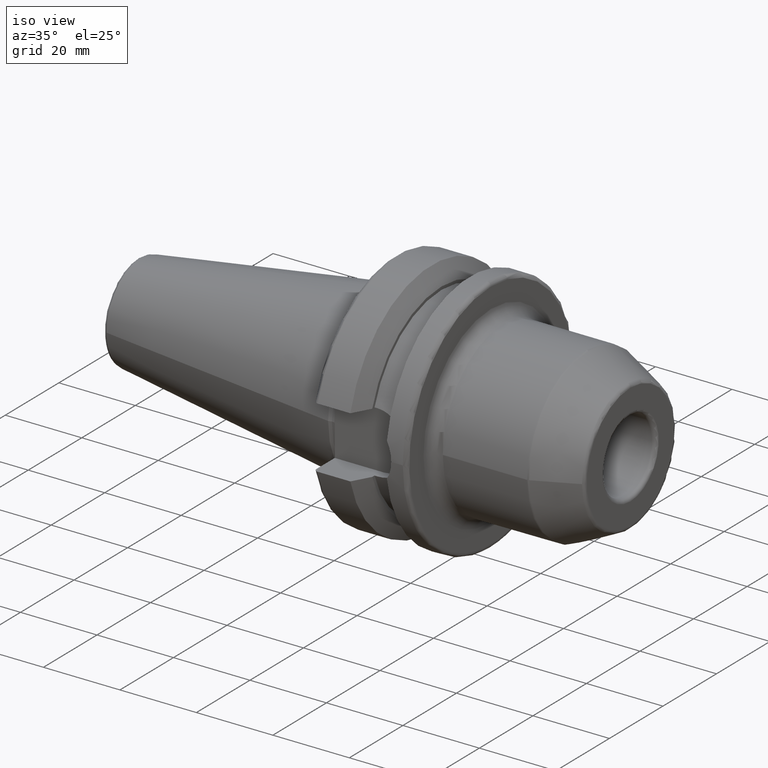
[diagram: clean part render]
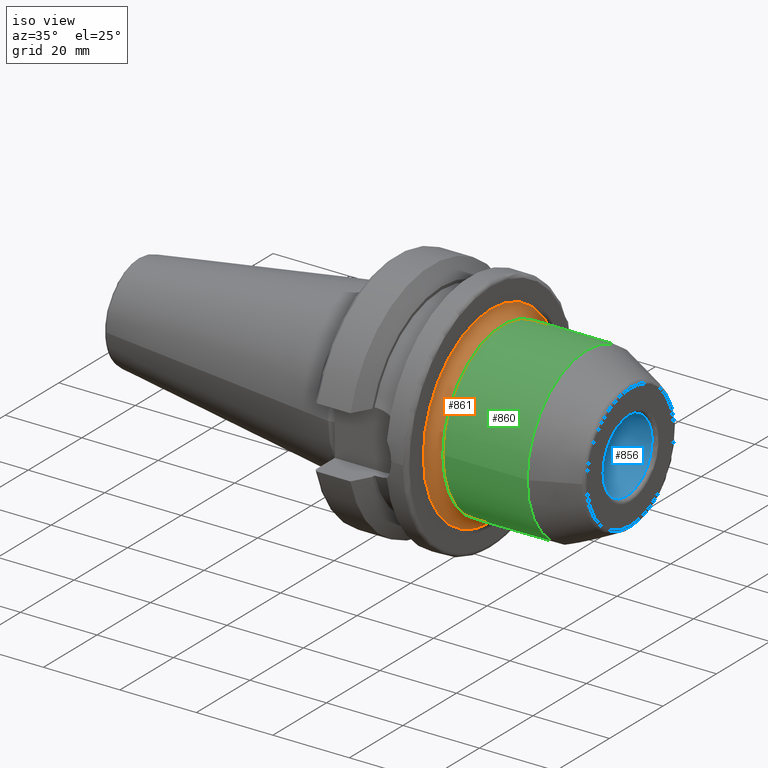
[diagram: same view with three faces highlighted in distinct colors, each labeled with its STEP entity id]
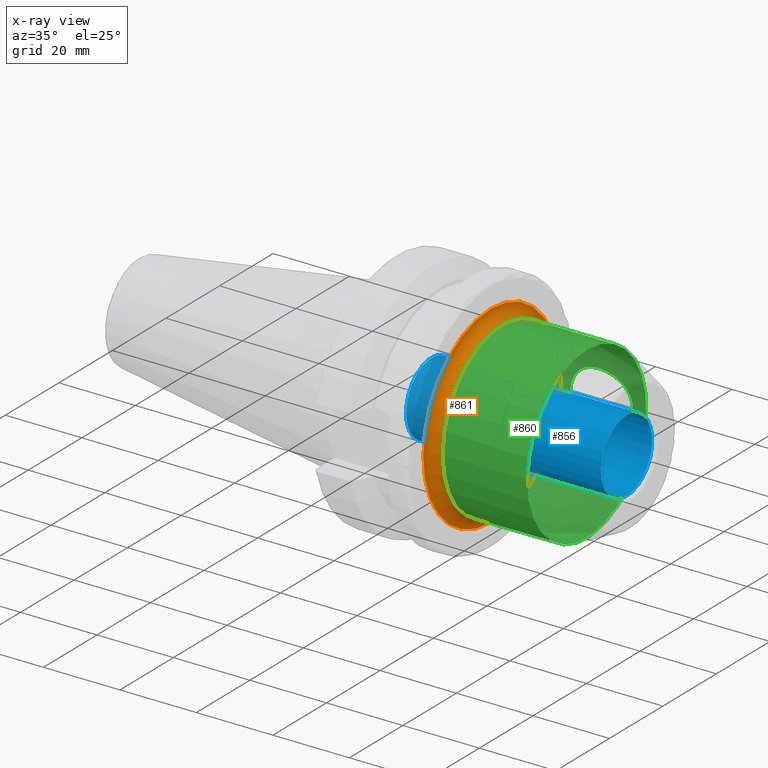
[diagram: x-ray of the same camera — body ghosted, the three highlighted faces saturated]
A machine part, iso view with three faces highlighted in distinct colors.
The next image is the same camera in x-ray (body ghosted, the three faces saturated) — at least one of them is partly hidden behind the body in this view.
Their STEP definitions:

[orange] entity #861 — the highlighted toroidal blend (fillet) surface has major radius 25.225 mm and minor (blend) radius 3 mm.
#189=FACE_OUTER_BOUND('',#245,.T.);
#245=EDGE_LOOP('',(#618,#619,#620,#621,#622));
#312=CIRCLE('',#951,22.225);
#313=CIRCLE('',#952,22.225);
#314=CIRCLE('',#954,3.);
#315=CIRCLE('',#955,25.225);
#374=VERTEX_POINT('',#1409);
#375=VERTEX_POINT('',#1411);
#377=VERTEX_POINT('',#1442);
#467=EDGE_CURVE('',#375,#374,#312,.T.);
#468=EDGE_CURVE('',#374,#375,#313,.T.);
#470=EDGE_CURVE('',#375,#377,#314,.T.);
#471=EDGE_CURVE('',#377,#377,#315,.T.);
#618=ORIENTED_EDGE('',*,*,#468,.T.);
#619=ORIENTED_EDGE('',*,*,#470,.T.);
#620=ORIENTED_EDGE('',*,*,#471,.T.);
#621=ORIENTED_EDGE('',*,*,#470,.F.);
#622=ORIENTED_EDGE('',*,*,#467,.T.);
#847=TOROIDAL_SURFACE('',#953,25.225,3.);
#861=ADVANCED_FACE('',(#189),#847,.F.);
#951=AXIS2_PLACEMENT_3D('',#1412,#1092,#1093);
#952=AXIS2_PLACEMENT_3D('',#1413,#1094,#1095);
#953=AXIS2_PLACEMENT_3D('',#1441,#1096,#1097);
#954=AXIS2_PLACEMENT_3D('',#1443,#1098,#1099);
#955=AXIS2_PLACEMENT_3D('',#1444,#1100,#1101);
#1092=DIRECTION('center_axis',(-1.,0.,0.));
#1093=DIRECTION('ref_axis',(0.,-1.,-1.22464679914735E-16));
#1094=DIRECTION('center_axis',(-1.,0.,0.));
#1095=DIRECTION('ref_axis',(0.,-1.,-1.22464679914735E-16));
#1096=DIRECTION('center_axis',(-1.,0.,0.));
#1097=DIRECTION('ref_axis',(0.,0.,1.));
#1098=DIRECTION('center_axis',(0.,-1.,1.22464679914735E-16));
#1099=DIRECTION('ref_axis',(0.,-1.22464679914735E-16,-1.));
#1100=DIRECTION('center_axis',(1.,0.,0.));
#1101=DIRECTION('ref_axis',(0.,-1.,-1.22464679914735E-16));
#1409=CARTESIAN_POINT('',(30.,-22.225,-2.72177751110499E-15));
#1411=CARTESIAN_POINT('',(30.,-2.72177751110499E-15,-22.225));
#1412=CARTESIAN_POINT('Origin',(30.,0.,0.));
#1413=CARTESIAN_POINT('Origin',(30.,0.,0.));
#1441=CARTESIAN_POINT('Origin',(30.,0.,0.));
#1442=CARTESIAN_POINT('',(27.,-3.0891715508492E-15,-25.225));
#1443=CARTESIAN_POINT('Origin',(30.,-3.0891715508492E-15,-25.225));
#1444=CARTESIAN_POINT('Origin',(27.,0.,0.));

[blue] entity #856 — the highlighted cylindrical surface (bore or boss wall) has radius 9.525 mm, axis along (1, 0, 0).
#29=B_SPLINE_CURVE_WITH_KNOTS('',3,(#1340,#1341,#1342,#1343,#1344,#1345,
#1346,#1347,#1348,#1349,#1350,#1351),.UNSPECIFIED.,.F.,.F.,(4,2,2,2,2,4),
(0.,0.230466512573232,0.460933025146465,0.692919319972664,0.924905614798864,
1.10003919702619),.UNSPECIFIED.);
#30=B_SPLINE_CURVE_WITH_KNOTS('',3,(#1352,#1353,#1354,#1355,#1356,#1357,
#1358,#1359,#1360,#1361,#1362,#1363,#1364,#1365,#1366,#1367,#1368,#1369,
#1370,#1371,#1372,#1373,#1374,#1375,#1376,#1377,#1378,#1379,#1380,#1381,
#1382,#1383,#1384,#1385,#1386,#1387,#1388,#1389),.UNSPECIFIED.,.F.,.F.,
(4,2,2,2,2,2,2,2,2,2,2,2,2,2,2,2,2,2,4),(1.10003919702619,1.14431938933897,
1.36373316387908,1.64491659882425,1.92610003376942,2.11976279155213,2.21659417044348,
2.31342554933483,2.41025692822619,2.50708830711754,2.70075106490025,2.98193449984542,
3.26311793479059,3.4825317093307,3.7019454838708,3.933931778697,4.1659180735232,
4.39638458609644,4.62685109866967),.UNSPECIFIED.);
#49=LINE('',#1336,#94);
#94=VECTOR('',#1063,9.525);
#139=CYLINDRICAL_SURFACE('',#937,9.525);
#155=FACE_BOUND('',#239,.T.);
#184=FACE_OUTER_BOUND('',#238,.T.);
#238=EDGE_LOOP('',(#587,#588,#589,#590,#591));
#239=EDGE_LOOP('',(#592,#593));
#298=CIRCLE('',#931,9.525);
#299=CIRCLE('',#932,9.525);
#303=CIRCLE('',#938,9.525);
#361=VERTEX_POINT('',#1324);
#362=VERTEX_POINT('',#1325);
#365=VERTEX_POINT('',#1335);
#366=VERTEX_POINT('',#1338);
#367=VERTEX_POINT('',#1339);
#448=EDGE_CURVE('',#361,#362,#298,.T.);
#449=EDGE_CURVE('',#362,#361,#299,.T.);
#453=EDGE_CURVE('',#362,#365,#49,.T.);
#454=EDGE_CURVE('',#365,#365,#303,.T.);
#455=EDGE_CURVE('',#366,#367,#29,.T.);
#456=EDGE_CURVE('',#367,#366,#30,.T.);
#587=ORIENTED_EDGE('',*,*,#448,.F.);
#588=ORIENTED_EDGE('',*,*,#449,.F.);
#589=ORIENTED_EDGE('',*,*,#453,.T.);
#590=ORIENTED_EDGE('',*,*,#454,.T.);
#591=ORIENTED_EDGE('',*,*,#453,.F.);
#592=ORIENTED_EDGE('',*,*,#455,.T.);
#593=ORIENTED_EDGE('',*,*,#456,.T.);
#856=ADVANCED_FACE('',(#184,#155),#139,.F.);
#931=AXIS2_PLACEMENT_3D('',#1326,#1049,#1050);
#932=AXIS2_PLACEMENT_3D('',#1327,#1051,#1052);
#937=AXIS2_PLACEMENT_3D('',#1334,#1061,#1062);
#938=AXIS2_PLACEMENT_3D('',#1337,#1064,#1065);
#1049=DIRECTION('center_axis',(-1.,0.,0.));
#1050=DIRECTION('ref_axis',(0.,-1.,1.83697019872103E-16));
#1051=DIRECTION('center_axis',(-1.,0.,0.));
#1052=DIRECTION('ref_axis',(0.,-1.,1.83697019872103E-16));
#1061=DIRECTION('center_axis',(1.,0.,0.));
#1062=DIRECTION('ref_axis',(0.,1.,0.));
#1063=DIRECTION('',(-1.,0.,0.));
#1064=DIRECTION('center_axis',(-1.,0.,0.));
#1065=DIRECTION('ref_axis',(0.,0.,1.));
#1324=CARTESIAN_POINT('',(62.5,-1.16647607618785E-15,9.525));
#1325=CARTESIAN_POINT('',(62.5,-9.525,-1.16647607618785E-15));
#1326=CARTESIAN_POINT('Origin',(62.5,0.,0.));
#1327=CARTESIAN_POINT('Origin',(62.5,0.,0.));
#1334=CARTESIAN_POINT('Origin',(45.25,0.,0.));
#1335=CARTESIAN_POINT('',(11.5,-9.525,-1.16647607618785E-15));
#1336=CARTESIAN_POINT('',(45.25,-9.525,-1.16647607618785E-15));
#1337=CARTESIAN_POINT('Origin',(11.5,0.,0.));
#1338=CARTESIAN_POINT('',(40.4,7.64946565127264,5.6755));
#1339=CARTESIAN_POINT('',(47.5755,9.40614825526744,-1.4999999999882));
#1340=CARTESIAN_POINT('Ctrl Pts',(40.4,7.64946565127264,5.6755));
#1341=CARTESIAN_POINT('Ctrl Pts',(41.1682217085774,7.64946565127264,5.6755));
#1342=CARTESIAN_POINT('Ctrl Pts',(41.9822344644768,7.75123567275378,5.54459917063008));
#1343=CARTESIAN_POINT('Ctrl Pts',(43.4972118466025,8.09958180738268,5.02205049765173));
#1344=CARTESIAN_POINT('Ctrl Pts',(44.2001260371873,8.33847887931042,4.63096595664662));
#1345=CARTESIAN_POINT('Ctrl Pts',(45.3696691523972,8.77930616942869,3.72869587360727));
#1346=CARTESIAN_POINT('Ctrl Pts',(45.9295268261851,9.01817091888702,3.14352487735058));
#1347=CARTESIAN_POINT('Ctrl Pts',(46.82222884407,9.37910094603838,1.80045003440052));
#1348=CARTESIAN_POINT('Ctrl Pts',(47.1547609974679,9.49746773900189,1.04134760651329));
#1349=CARTESIAN_POINT('Ctrl Pts',(47.493696679119,9.53787875645908,-0.272090012423892));
#1350=CARTESIAN_POINT('Ctrl Pts',(47.5755,9.50376352485347,-0.887877534830747));
#1351=CARTESIAN_POINT('Ctrl Pts',(47.5755,9.40614825526744,-1.4999999999764));
#1352=CARTESIAN_POINT('Ctrl Pts',(47.5755,9.40614825526744,-1.4999999999764));
#1353=CARTESIAN_POINT('Ctrl Pts',(47.5755,9.38146753524242,-1.6547670077136));
#1354=CARTESIAN_POINT('Ctrl Pts',(47.5704801072128,9.35289136351269,-1.80932656140089));
#1355=CARTESIAN_POINT('Ctrl Pts',(47.5113844786342,9.1603572791699,-2.72357185668363));
#1356=CARTESIAN_POINT('Ctrl Pts',(47.3355012605568,8.9019414577022,-3.45804256371677));
#1357=CARTESIAN_POINT('Ctrl Pts',(46.7864147837142,8.22664413613363,-4.88173317969903));
#1358=CARTESIAN_POINT('Ctrl Pts',(46.325073443709,7.72535396687226,-5.63426078677205));
#1359=CARTESIAN_POINT('Ctrl Pts',(45.2054147361714,6.62451682900913,-6.89505316657466));
#1360=CARTESIAN_POINT('Ctrl Pts',(44.5488200056318,6.02553641425123,-7.40534095577965));
#1361=CARTESIAN_POINT('Ctrl Pts',(43.4060127760069,5.13109094064076,-8.03722711383778));
#1362=CARTESIAN_POINT('Ctrl Pts',(42.8614688810049,4.74216167770653,-8.26765917100101));
#1363=CARTESIAN_POINT('Ctrl Pts',(41.9780083182892,4.28889307000784,-8.5064791046894));
#1364=CARTESIAN_POINT('Ctrl Pts',(41.6717866371285,4.16027172347988,-8.56898741498497));
#1365=CARTESIAN_POINT('Ctrl Pts',(41.0442919865103,3.98144708220432,-8.65352444853739));
#1366=CARTESIAN_POINT('Ctrl Pts',(40.7227712629712,3.93208910758645,-8.6755));
#1367=CARTESIAN_POINT('Ctrl Pts',(40.0772287370288,3.93208910758645,-8.6755));
#1368=CARTESIAN_POINT('Ctrl Pts',(39.7557080134897,3.98144708220433,-8.65352444853739));
#1369=CARTESIAN_POINT('Ctrl Pts',(39.1282133628715,4.16027172347989,-8.56898741498497));
#1370=CARTESIAN_POINT('Ctrl Pts',(38.8219916817108,4.28889307000784,-8.5064791046894));
#1371=CARTESIAN_POINT('Ctrl Pts',(37.9385311189952,4.74216167770653,-8.26765917100101));
#1372=CARTESIAN_POINT('Ctrl Pts',(37.3939872239931,5.13109094064076,-8.03722711383778));
#1373=CARTESIAN_POINT('Ctrl Pts',(36.2511799943682,6.02553641425123,-7.40534095577966));
#1374=CARTESIAN_POINT('Ctrl Pts',(35.5945852638286,6.62451682900912,-6.89505316657467));
#1375=CARTESIAN_POINT('Ctrl Pts',(34.4749265562911,7.72535396687226,-5.63426078677206));
#1376=CARTESIAN_POINT('Ctrl Pts',(34.0135852162858,8.22664413613363,-4.88173317969903));
#1377=CARTESIAN_POINT('Ctrl Pts',(33.4644987394432,8.9019414577022,-3.45804256371677));
#1378=CARTESIAN_POINT('Ctrl Pts',(33.2886155213658,9.1603572791699,-2.72357185668363));
#1379=CARTESIAN_POINT('Ctrl Pts',(33.1902712544871,9.48076377672806,-1.20212626968288));
#1380=CARTESIAN_POINT('Ctrl Pts',(33.2694391488986,9.54227404080999,-0.414945406216732));
#1381=CARTESIAN_POINT('Ctrl Pts',(33.6452390025321,9.49746773900189,1.04134760651329));
#1382=CARTESIAN_POINT('Ctrl Pts',(33.97777115593,9.37910094603838,1.80045003440052));
#1383=CARTESIAN_POINT('Ctrl Pts',(34.870473173815,9.01817091888702,3.14352487735057));
#1384=CARTESIAN_POINT('Ctrl Pts',(35.4303308476028,8.77930616942869,3.72869587360726));
#1385=CARTESIAN_POINT('Ctrl Pts',(36.5998739628127,8.33847887931042,4.63096595664662));
#1386=CARTESIAN_POINT('Ctrl Pts',(37.3027881533976,8.09958180738268,5.02205049765173));
#1387=CARTESIAN_POINT('Ctrl Pts',(38.8177655355232,7.75123567275378,5.54459917063008));
#1388=CARTESIAN_POINT('Ctrl Pts',(39.6317782914226,7.64946565127264,5.6755));
#1389=CARTESIAN_POINT('Ctrl Pts',(40.4,7.64946565127264,5.6755));

[green] entity #860 — the highlighted cylindrical surface (bore or boss wall) has radius 22.225 mm, axis along (1, 0, 0).
#31=B_SPLINE_CURVE_WITH_KNOTS('',3,(#1415,#1416,#1417,#1418,#1419,#1420,
#1421,#1422,#1423,#1424,#1425,#1426,#1427,#1428,#1429,#1430,#1431,#1432,
#1433,#1434,#1435,#1436,#1437,#1438,#1439,#1440),.UNSPECIFIED.,.T.,.F.,
(4,1,1,1,1,1,1,1,1,1,1,1,1,1,1,1,1,1,1,1,1,1,1,4),(-7.79040993769574,-7.4786668919809,
-7.32279536912348,-7.16692384626605,-7.01105232340863,-6.85518080055121,
-6.69930927769378,-6.54343775483636,-6.23169470912152,-6.07582318626409,
-5.91995166340667,-5.71212296626344,-5.50429426912021,-5.29646557197698,
-5.08863687483375,-4.88080817769052,-4.67297948054729,-4.51710795768986,
-4.36123643483244,-4.28330067340373,-4.0494933891176,-3.89362186626017,
-3.73775034340275,-3.4260072976879),.UNSPECIFIED.);
#51=LINE('',#1410,#96);
#96=VECTOR('',#1091,22.225);
#140=CYLINDRICAL_SURFACE('',#950,22.225);
#156=FACE_BOUND('',#244,.T.);
#188=FACE_OUTER_BOUND('',#243,.T.);
#243=EDGE_LOOP('',(#611,#612,#613,#614,#615,#616));
#244=EDGE_LOOP('',(#617));
#310=CIRCLE('',#948,22.225);
#311=CIRCLE('',#949,22.225);
#312=CIRCLE('',#951,22.225);
#313=CIRCLE('',#952,22.225);
#372=VERTEX_POINT('',#1403);
#373=VERTEX_POINT('',#1405);
#374=VERTEX_POINT('',#1409);
#375=VERTEX_POINT('',#1411);
#376=VERTEX_POINT('',#1414);
#464=EDGE_CURVE('',#372,#373,#310,.T.);
#465=EDGE_CURVE('',#373,#372,#311,.T.);
#466=EDGE_CURVE('',#373,#374,#51,.T.);
#467=EDGE_CURVE('',#375,#374,#312,.T.);
#468=EDGE_CURVE('',#374,#375,#313,.T.);
#469=EDGE_CURVE('',#376,#376,#31,.T.);
#611=ORIENTED_EDGE('',*,*,#465,.F.);
#612=ORIENTED_EDGE('',*,*,#466,.T.);
#613=ORIENTED_EDGE('',*,*,#467,.F.);
#614=ORIENTED_EDGE('',*,*,#468,.F.);
#615=ORIENTED_EDGE('',*,*,#466,.F.);
#616=ORIENTED_EDGE('',*,*,#464,.F.);
#617=ORIENTED_EDGE('',*,*,#469,.F.);
#860=ADVANCED_FACE('',(#188,#156),#140,.T.);
#948=AXIS2_PLACEMENT_3D('',#1406,#1085,#1086);
#949=AXIS2_PLACEMENT_3D('',#1407,#1087,#1088);
#950=AXIS2_PLACEMENT_3D('',#1408,#1089,#1090);
#951=AXIS2_PLACEMENT_3D('',#1412,#1092,#1093);
#952=AXIS2_PLACEMENT_3D('',#1413,#1094,#1095);
#1085=DIRECTION('center_axis',(1.,0.,0.));
#1086=DIRECTION('ref_axis',(0.,-1.,1.83697019872103E-16));
#1087=DIRECTION('center_axis',(1.,0.,0.));
#1088=DIRECTION('ref_axis',(0.,-1.,1.83697019872103E-16));
#1089=DIRECTION('center_axis',(1.,0.,0.));
#1090=DIRECTION('ref_axis',(0.,1.,0.));
#1091=DIRECTION('',(-1.,0.,0.));
#1092=DIRECTION('center_axis',(-1.,0.,0.));
#1093=DIRECTION('ref_axis',(0.,-1.,-1.22464679914735E-16));
#1094=DIRECTION('center_axis',(-1.,0.,0.));
#1095=DIRECTION('ref_axis',(0.,-1.,-1.22464679914735E-16));
#1403=CARTESIAN_POINT('',(52.0732566776946,-2.72177751110499E-15,22.225));
#1405=CARTESIAN_POINT('',(52.0732566776946,-22.225,-2.72177751110499E-15));
#1406=CARTESIAN_POINT('Origin',(52.0732566776946,0.,0.));
#1407=CARTESIAN_POINT('Origin',(52.0732566776946,0.,0.));
#1408=CARTESIAN_POINT('Origin',(39.6474756701688,0.,0.));
#1409=CARTESIAN_POINT('',(30.,-22.225,-2.72177751110499E-15));
#1410=CARTESIAN_POINT('',(39.6474756701688,-22.225,-2.72177751110499E-15));
#1411=CARTESIAN_POINT('',(30.,-2.72177751110499E-15,-22.225));
#1412=CARTESIAN_POINT('Origin',(30.,0.,0.));
#1413=CARTESIAN_POINT('Origin',(30.,0.,0.));
#1414=CARTESIAN_POINT('',(48.3948707946535,22.2240168594678,0.209044564849258));
#1415=CARTESIAN_POINT('Ctrl Pts',(48.3948707946535,22.2240168594678,0.209044564849258));
#1416=CARTESIAN_POINT('Ctrl Pts',(48.6543139828016,22.2354324253615,-1.0045709580686));
#1417=CARTESIAN_POINT('Ctrl Pts',(48.6291369932677,22.1045078254071,-2.80133234103351));
#1418=CARTESIAN_POINT('Ctrl Pts',(47.786856423376,21.6404679892042,-5.16122980358188));
#1419=CARTESIAN_POINT('Ctrl Pts',(46.7792223094434,21.210732091174,-6.68323982994829));
#1420=CARTESIAN_POINT('Ctrl Pts',(45.5541812296348,20.7918334010898,-7.88019158402417));
#1421=CARTESIAN_POINT('Ctrl Pts',(43.9896905622483,20.3877073362377,-8.86197068226982));
#1422=CARTESIAN_POINT('Ctrl Pts',(42.1834825225944,20.1118181085705,-9.46183853818705));
#1423=CARTESIAN_POINT('Ctrl Pts',(39.7668717794391,19.9843669054448,-9.71950081046131));
#1424=CARTESIAN_POINT('Ctrl Pts',(37.2720151841408,20.2644280963131,-9.1620089099658));
#1425=CARTESIAN_POINT('Ctrl Pts',(35.1868032147616,20.8094456332008,-7.83581057675299));
#1426=CARTESIAN_POINT('Ctrl Pts',(33.8407374758743,21.274393914987,-6.50099395483453));
#1427=CARTESIAN_POINT('Ctrl Pts',(32.6734001793087,21.7999262555172,-4.54395426735068));
#1428=CARTESIAN_POINT('Ctrl Pts',(32.1349299154457,22.1672612287736,-2.12230940584593));
#1429=CARTESIAN_POINT('Ctrl Pts',(32.287494493608,22.2690233951124,0.278103450597375));
#1430=CARTESIAN_POINT('Ctrl Pts',(33.2400356126118,22.0968391735294,2.70002286019503));
#1431=CARTESIAN_POINT('Ctrl Pts',(34.7484567832279,21.7737420889269,4.55177801883037));
#1432=CARTESIAN_POINT('Ctrl Pts',(36.6008576569484,21.4555369564349,5.82755184254274));
#1433=CARTESIAN_POINT('Ctrl Pts',(38.6184269666428,21.2491988924954,6.51574605987571));
#1434=CARTESIAN_POINT('Ctrl Pts',(40.1366374970481,21.201262763815,6.66875454937902));
#1435=CARTESIAN_POINT('Ctrl Pts',(41.9369902221151,21.2328472774004,6.56519626006218));
#1436=CARTESIAN_POINT('Ctrl Pts',(43.8013902806271,21.3976797794145,6.0412936103375));
#1437=CARTESIAN_POINT('Ctrl Pts',(45.6246946855838,21.6978532826879,4.85365734472489));
#1438=CARTESIAN_POINT('Ctrl Pts',(47.2802058366017,22.0291571455583,3.19682581980385));
#1439=CARTESIAN_POINT('Ctrl Pts',(48.1354276065053,22.212601293574,1.42266008776725));
#1440=CARTESIAN_POINT('Ctrl Pts',(48.3948707946535,22.2240168594678,0.209044564849263));